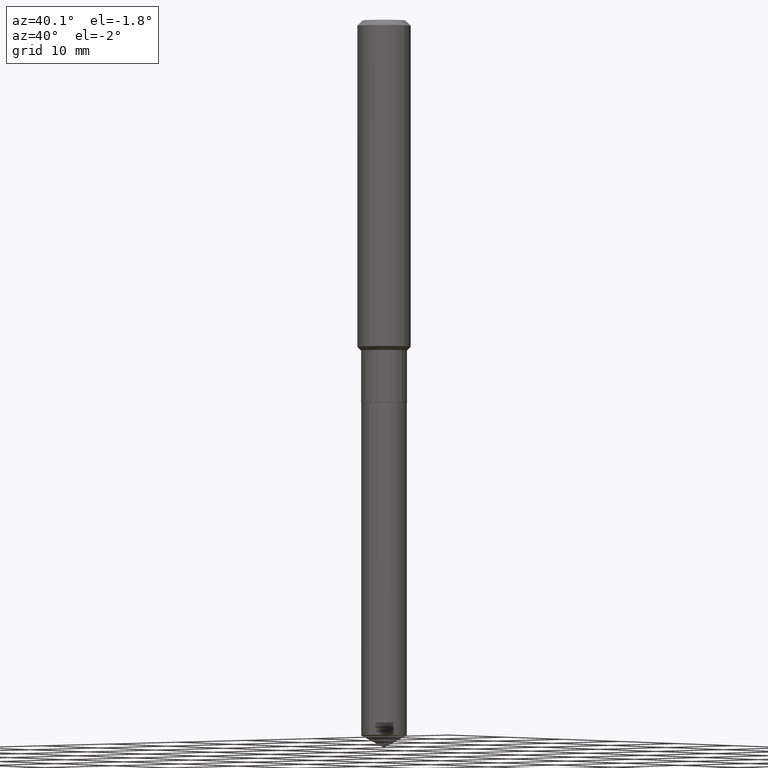
[diagram: clean part render]
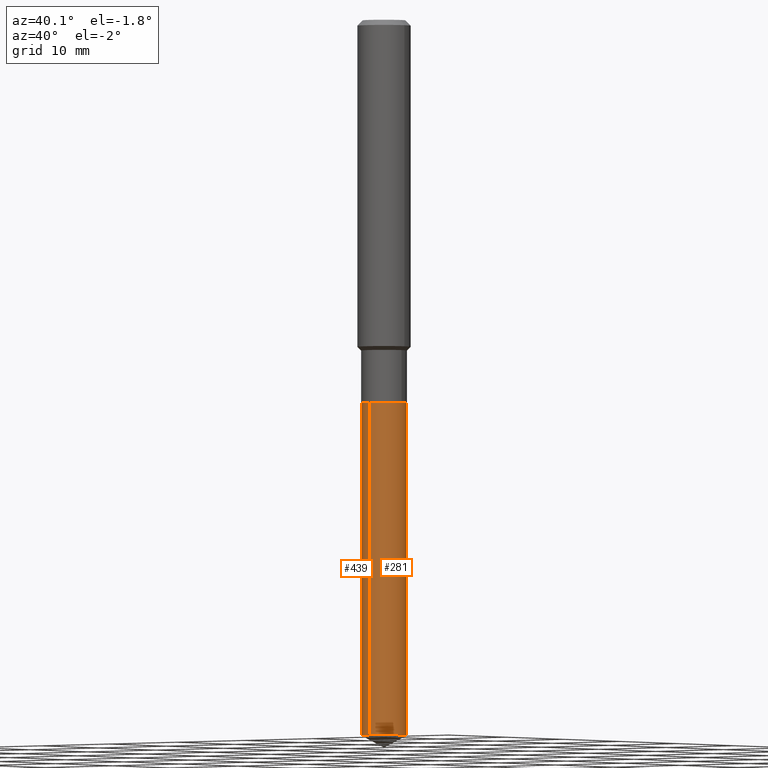
[diagram: same view with one multi-face feature highlighted, each face labeled with its STEP entity id]
A machine part, auxiliary view. The highlighted faces form ONE feature: a constant-radius fillet chain: 2 tangent blend faces with common blend radius 2.5794 mm. The faces share edges in the B-rep.
Their STEP definitions:
[1] entity #281 (Cylinder):
#5 = VERTEX_POINT ( 'NONE', #242 ) ;
#10 = DIRECTION ( 'NONE',  ( -2.445641642921582750E-29, 3.491233826799298871E-15, 1.000000000000000000 ) ) ;
#12 = AXIS2_PLACEMENT_3D ( 'NONE', #431, #10, #356 ) ;
#40 = ORIENTED_EDGE ( 'NONE', *, *, #348, .T. ) ;
#46 = EDGE_CURVE ( 'NONE', #106, #5, #108, .T. ) ;
#49 = DIRECTION ( 'NONE',  ( -2.445641642921582470E-29, 3.491233826799298476E-15, 1.000000000000000000 ) ) ;
#63 = CARTESIAN_POINT ( 'NONE',  ( 7.215561481644231637E-16, 0.1015499999999940756, -1.699100000000000499 ) ) ;
#68 = ORIENTED_EDGE ( 'NONE', *, *, #430, .F. ) ;
#71 = VECTOR ( 'NONE', #49, 39.37007874015748143 ) ;
#94 = CARTESIAN_POINT ( 'NONE',  ( 7.762184909023018875E-29, -1.108161384620890165E-14, -3.174004907214777127 ) ) ;
#106 = VERTEX_POINT ( 'NONE', #473 ) ;
#108 = CIRCLE ( 'NONE', #308, 0.1015500000000000014 ) ;
#111 = VERTEX_POINT ( 'NONE', #284 ) ;
#113 = EDGE_CURVE ( 'NONE', #111, #455, #301, .T. ) ;
#127 = CARTESIAN_POINT ( 'NONE',  ( 7.215561481644593527E-16, 0.1015499999999889269, -3.174004907214778015 ) ) ;
#151 = ORIENTED_EDGE ( 'NONE', *, *, #46, .F. ) ;
#195 = CYLINDRICAL_SURFACE ( 'NONE', #12, 0.1015500000000000014 ) ;
#215 = LINE ( 'NONE', #63, #446 ) ;
#218 = DIRECTION ( 'NONE',  ( -2.445641642921582470E-29, 3.491233826799298476E-15, 1.000000000000000000 ) ) ;
#225 = ORIENTED_EDGE ( 'NONE', *, *, #113, .T. ) ;
#242 = CARTESIAN_POINT ( 'NONE',  ( 7.215561481644595499E-16, 0.1015499999999940756, -1.699100000000000499 ) ) ;
#250 = DIRECTION ( 'NONE',  ( -2.445641642921582750E-29, 3.491233826799298871E-15, 1.000000000000000000 ) ) ;
#281 = ADVANCED_FACE ( 'NONE', ( #462 ), #195, .T. ) ;
#284 = CARTESIAN_POINT ( 'NONE',  ( -7.091198599189627834E-16, -0.1015500000000110897, -3.174004907214776683 ) ) ;
#288 = CARTESIAN_POINT ( 'NONE',  ( 4.155096048589166181E-29, -5.932375942828389297E-15, -1.699100000000000277 ) ) ;
#301 = CIRCLE ( 'NONE', #391, 0.1015500000000000014 ) ;
#308 = AXIS2_PLACEMENT_3D ( 'NONE', #288, #484, #442 ) ;
#344 = LINE ( 'NONE', #469, #71 ) ;
#348 = EDGE_CURVE ( 'NONE', #455, #5, #215, .T. ) ;
#356 = DIRECTION ( 'NONE',  ( -6.982962677686266711E-15, -1.000000000000000000, 2.690150658458161520E-15 ) ) ;
#387 = EDGE_LOOP ( 'NONE', ( #225, #40, #151, #68 ) ) ;
#391 = AXIS2_PLACEMENT_3D ( 'NONE', #94, #250, #404 ) ;
#404 = DIRECTION ( 'NONE',  ( -6.982962677686266711E-15, -1.000000000000000000, 5.380301316916323039E-15 ) ) ;
#430 = EDGE_CURVE ( 'NONE', #111, #106, #344, .T. ) ;
#431 = CARTESIAN_POINT ( 'NONE',  ( 4.155096048589166181E-29, -5.932375942828389297E-15, -1.699100000000000277 ) ) ;
#442 = DIRECTION ( 'NONE',  ( -6.982962677686266711E-15, -1.000000000000000000, 2.690150658458161520E-15 ) ) ;
#446 = VECTOR ( 'NONE', #218, 39.37007874015748143 ) ;
#455 = VERTEX_POINT ( 'NONE', #127 ) ;
#462 = FACE_OUTER_BOUND ( 'NONE', #387, .T. ) ;
#469 = CARTESIAN_POINT ( 'NONE',  ( -7.091198599189988738E-16, -0.1015500000000059272, -1.699099999999999833 ) ) ;
#473 = CARTESIAN_POINT ( 'NONE',  ( -7.091198599189988738E-16, -0.1015500000000059272, -1.699099999999999833 ) ) ;
#484 = DIRECTION ( 'NONE',  ( -2.445641642921582750E-29, 3.491233826799298871E-15, 1.000000000000000000 ) ) ;
[2] entity #439 (Cylinder):
#5 = VERTEX_POINT ( 'NONE', #242 ) ;
#16 = DIRECTION ( 'NONE',  ( -6.982962677686266711E-15, -1.000000000000000000, 2.690150658458161520E-15 ) ) ;
#48 = DIRECTION ( 'NONE',  ( -6.982962677686266711E-15, -1.000000000000000000, 2.690150658458161520E-15 ) ) ;
#49 = DIRECTION ( 'NONE',  ( -2.445641642921582470E-29, 3.491233826799298476E-15, 1.000000000000000000 ) ) ;
#63 = CARTESIAN_POINT ( 'NONE',  ( 7.215561481644231637E-16, 0.1015499999999940756, -1.699100000000000499 ) ) ;
#71 = VECTOR ( 'NONE', #49, 39.37007874015748143 ) ;
#85 = CARTESIAN_POINT ( 'NONE',  ( 7.762184909023018875E-29, -1.108161384620890165E-14, -3.174004907214777127 ) ) ;
#93 = CIRCLE ( 'NONE', #162, 0.1015500000000000014 ) ;
#106 = VERTEX_POINT ( 'NONE', #473 ) ;
#111 = VERTEX_POINT ( 'NONE', #284 ) ;
#127 = CARTESIAN_POINT ( 'NONE',  ( 7.215561481644593527E-16, 0.1015499999999889269, -3.174004907214778015 ) ) ;
#162 = AXIS2_PLACEMENT_3D ( 'NONE', #323, #277, #48 ) ;
#189 = ORIENTED_EDGE ( 'NONE', *, *, #262, .F. ) ;
#196 = CARTESIAN_POINT ( 'NONE',  ( 4.155096048589166181E-29, -5.932375942828389297E-15, -1.699100000000000277 ) ) ;
#204 = CIRCLE ( 'NONE', #361, 0.1015500000000000014 ) ;
#205 = CYLINDRICAL_SURFACE ( 'NONE', #266, 0.1015500000000000014 ) ;
#215 = LINE ( 'NONE', #63, #446 ) ;
#218 = DIRECTION ( 'NONE',  ( -2.445641642921582470E-29, 3.491233826799298476E-15, 1.000000000000000000 ) ) ;
#242 = CARTESIAN_POINT ( 'NONE',  ( 7.215561481644595499E-16, 0.1015499999999940756, -1.699100000000000499 ) ) ;
#246 = EDGE_CURVE ( 'NONE', #455, #111, #204, .T. ) ;
#262 = EDGE_CURVE ( 'NONE', #5, #106, #93, .T. ) ;
#266 = AXIS2_PLACEMENT_3D ( 'NONE', #196, #363, #16 ) ;
#277 = DIRECTION ( 'NONE',  ( -2.445641642921582750E-29, 3.491233826799298871E-15, 1.000000000000000000 ) ) ;
#284 = CARTESIAN_POINT ( 'NONE',  ( -7.091198599189627834E-16, -0.1015500000000110897, -3.174004907214776683 ) ) ;
#314 = FACE_OUTER_BOUND ( 'NONE', #371, .T. ) ;
#323 = CARTESIAN_POINT ( 'NONE',  ( 4.155096048589166181E-29, -5.932375942828389297E-15, -1.699100000000000277 ) ) ;
#344 = LINE ( 'NONE', #469, #71 ) ;
#348 = EDGE_CURVE ( 'NONE', #455, #5, #215, .T. ) ;
#350 = ORIENTED_EDGE ( 'NONE', *, *, #246, .T. ) ;
#361 = AXIS2_PLACEMENT_3D ( 'NONE', #85, #388, #398 ) ;
#363 = DIRECTION ( 'NONE',  ( -2.445641642921582750E-29, 3.491233826799298871E-15, 1.000000000000000000 ) ) ;
#371 = EDGE_LOOP ( 'NONE', ( #418, #350, #384, #189 ) ) ;
#384 = ORIENTED_EDGE ( 'NONE', *, *, #430, .T. ) ;
#388 = DIRECTION ( 'NONE',  ( -2.445641642921582750E-29, 3.491233826799298871E-15, 1.000000000000000000 ) ) ;
#398 = DIRECTION ( 'NONE',  ( -6.982962677686266711E-15, -1.000000000000000000, 5.380301316916323039E-15 ) ) ;
#418 = ORIENTED_EDGE ( 'NONE', *, *, #348, .F. ) ;
#430 = EDGE_CURVE ( 'NONE', #111, #106, #344, .T. ) ;
#439 = ADVANCED_FACE ( 'NONE', ( #314 ), #205, .T. ) ;
#446 = VECTOR ( 'NONE', #218, 39.37007874015748143 ) ;
#455 = VERTEX_POINT ( 'NONE', #127 ) ;
#469 = CARTESIAN_POINT ( 'NONE',  ( -7.091198599189988738E-16, -0.1015500000000059272, -1.699099999999999833 ) ) ;
#473 = CARTESIAN_POINT ( 'NONE',  ( -7.091198599189988738E-16, -0.1015500000000059272, -1.699099999999999833 ) ) ;